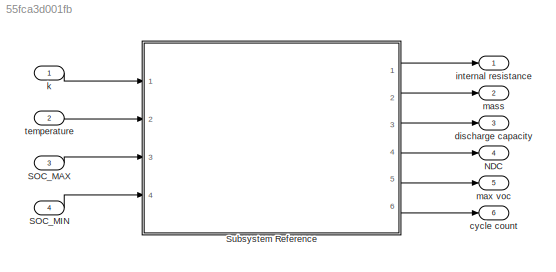
MODEL slx_55fca3d001fb
KIND model
CONFIG AbsTol = auto
CONFIG EnableMultiTasking = off
CONFIG FixedStep = 1
CONFIG MaxStep = auto
CONFIG MinStep = auto
CONFIG RelTol = 1e-3
CONFIG SampleTimeConstraint = Unconstrained
CONFIG SolverName = FixedStepDiscrete
CONFIG StartTime = aging_test.t(1)
CONFIG StopTime = aging_test.t(end)
BLOCK [Outport] NDC
  Port = 4
BLOCK [Inport] SOC_MAX
  Port = 3
BLOCK [Inport] SOC_MIN
  Port = 4
BLOCK [SubSystem] Subsystem Reference
  Ports = [4, 6]
  ReferencedSubsystem = ageing_model
  RequestExecContextInheritance = off
BLOCK [Outport] cycle count
  Port = 6
BLOCK [Outport] discharge capacity
  Port = 3
BLOCK [Outport] internal resistance
BLOCK [Inport] k
BLOCK [Outport] mass
  Port = 2
BLOCK [Outport] max voc
  Port = 5
BLOCK [Inport] temperature
  Port = 2
LINE SOC_MAX:1 -> Subsystem Reference:3
LINE SOC_MIN:1 -> Subsystem Reference:4
LINE Subsystem Reference:1 -> internal resistance:1
LINE Subsystem Reference:2 -> mass:1
LINE Subsystem Reference:3 -> discharge capacity:1
LINE Subsystem Reference:4 -> NDC:1
LINE Subsystem Reference:5 -> max voc:1
LINE Subsystem Reference:6 -> cycle count:1
LINE k:1 -> Subsystem Reference:1
LINE temperature:1 -> Subsystem Reference:2
